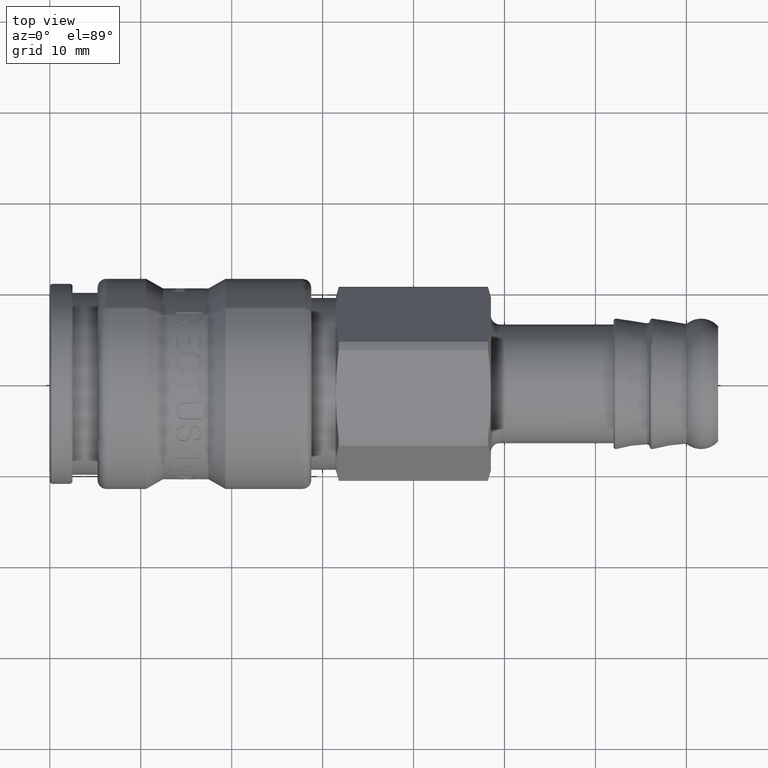
[diagram: clean part render]
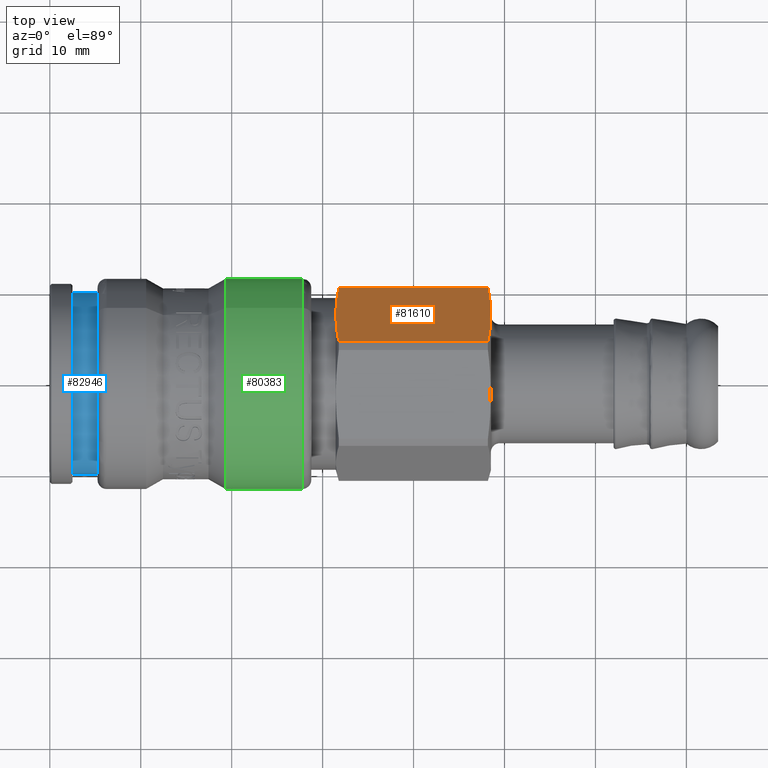
[diagram: same view with three faces highlighted in distinct colors, each labeled with its STEP entity id]
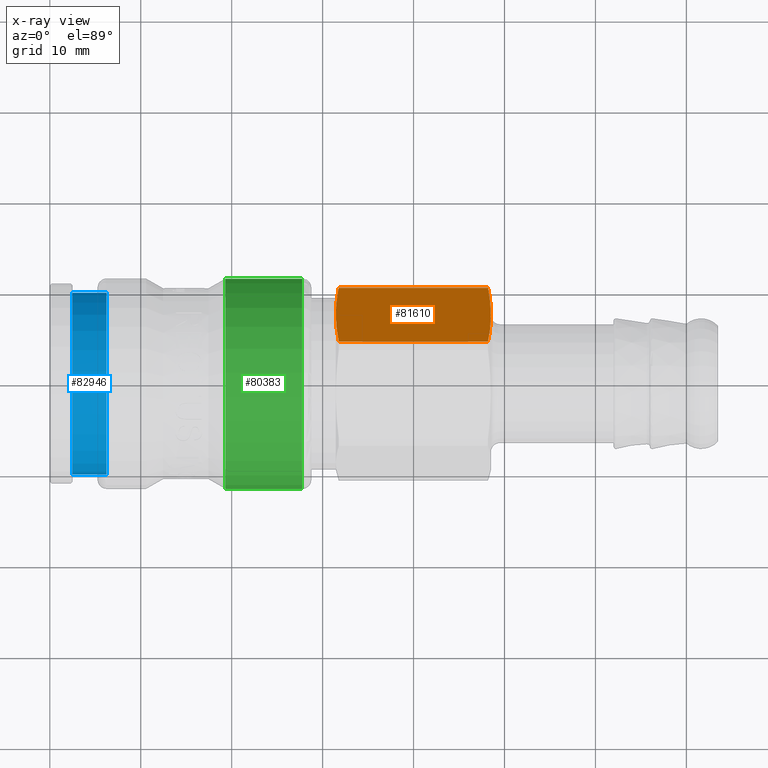
[diagram: x-ray of the same camera — body ghosted, the three highlighted faces saturated]
A machine part, top view with three faces highlighted in distinct colors.
The next image is the same camera in x-ray (body ghosted, the three faces saturated) — at least one of them is partly hidden behind the body in this view.
Their STEP definitions:

[orange] entity #81610 — the highlighted planar face has unit normal (-0, -0.788, -0.6157).
#81495=CARTESIAN_POINT('',(48.500000000000007,7.485774806349868,5.84920298404986));
#81496=VERTEX_POINT('',#81495);
#81544=CARTESIAN_POINT('',(29.50640680468193,7.485774806349877,5.84920298404986));
#81545=DIRECTION('',(-3.095927E-016,-0.787976295405248,-0.615705577268406));
#81546=DIRECTION('',(-2.419083E-016,-0.615705577268406,0.787976295405248));
#81547=AXIS2_PLACEMENT_3D('',#81544,#81545,#81546);
#81548=PLANE('',#81547);
#81549=CARTESIAN_POINT('',(48.178460969082657,10.517147926735607,1.969669892941755));
#81550=VERTEX_POINT('',#81549);
#81551=CARTESIAN_POINT('',(48.178460969082657,10.517147926735618,1.969669892941741));
#81552=CARTESIAN_POINT('',(48.500000000000007,8.911420580788725,4.024670094667314));
#81553=CARTESIAN_POINT('',(48.5,7.485774806349869,5.84920298404986));
#81561=(BOUNDED_CURVE()B_SPLINE_CURVE(2,(#81551,#81552,#81553),.UNSPECIFIED.,.F.,.U.)B_SPLINE_CURVE_WITH_KNOTS((3,3),(0.0,0.493628243022416),.UNSPECIFIED.)CURVE()GEOMETRIC_REPRESENTATION_ITEM()RATIONAL_B_SPLINE_CURVE((1.0,1.031095482841843,1.0))REPRESENTATION_ITEM(''));
#81562=EDGE_CURVE('',#81550,#81496,#81561,.T.);
#81563=ORIENTED_EDGE('',*,*,#81562,.F.);
#81564=CARTESIAN_POINT('',(31.778237760728125,10.517147926735618,1.969669892941751));
#81565=VERTEX_POINT('',#81564);
#81566=CARTESIAN_POINT('',(31.778237760728125,10.517147926735616,1.969669892941751));
#81567=DIRECTION('',(1.0,0.0,0.0));
#81568=VECTOR('',#81567,16.400223208354525);
#81569=LINE('',#81566,#81568);
#81570=EDGE_CURVE('',#81565,#81550,#81569,.T.);
#81571=ORIENTED_EDGE('',*,*,#81570,.F.);
#81572=CARTESIAN_POINT('',(31.778237760728125,4.454401685964132,9.728736075157974));
#81573=VERTEX_POINT('',#81572);
#81574=CARTESIAN_POINT('',(31.778237760728132,4.454401685964159,9.72873607515794));
#81575=CARTESIAN_POINT('',(31.171220150958938,7.485774806349874,5.84920298404986));
#81576=CARTESIAN_POINT('',(31.778237760728132,10.517147926735591,1.969669892941782));
#81584=(BOUNDED_CURVE()B_SPLINE_CURVE(2,(#81574,#81575,#81576),.UNSPECIFIED.,.F.,.U.)B_SPLINE_CURVE_WITH_KNOTS((3,3),(0.0,0.986780367628033),.UNSPECIFIED.)CURVE()GEOMETRIC_REPRESENTATION_ITEM()RATIONAL_B_SPLINE_CURVE((1.0,1.126315789473698,1.0))REPRESENTATION_ITEM(''));
#81585=EDGE_CURVE('',#81573,#81565,#81584,.T.);
#81586=ORIENTED_EDGE('',*,*,#81585,.F.);
#81587=CARTESIAN_POINT('',(48.17846096908265,4.45440168596413,9.728736075157967));
#81588=VERTEX_POINT('',#81587);
#81589=CARTESIAN_POINT('',(48.17846096908265,4.454401685964126,9.728736075157974));
#81590=DIRECTION('',(-1.0,0.0,0.0));
#81591=VECTOR('',#81590,16.400223208354525);
#81592=LINE('',#81589,#81591);
#81593=EDGE_CURVE('',#81588,#81573,#81592,.T.);
#81594=ORIENTED_EDGE('',*,*,#81593,.F.);
#81595=CARTESIAN_POINT('',(48.5,7.485774806349869,5.84920298404986));
#81596=CARTESIAN_POINT('',(48.5,6.06012903191102,7.673735873432399));
#81597=CARTESIAN_POINT('',(48.17846096908265,4.454401685964119,9.728736075157981));
#81605=(BOUNDED_CURVE()B_SPLINE_CURVE(2,(#81595,#81596,#81597),.UNSPECIFIED.,.F.,.U.)B_SPLINE_CURVE_WITH_KNOTS((3,3),(0.493628243022416,0.987256486044832),.UNSPECIFIED.)CURVE()GEOMETRIC_REPRESENTATION_ITEM()RATIONAL_B_SPLINE_CURVE((1.0,1.031095482841855,1.0))REPRESENTATION_ITEM(''));
#81606=EDGE_CURVE('',#81496,#81588,#81605,.T.);
#81607=ORIENTED_EDGE('',*,*,#81606,.F.);
#81608=EDGE_LOOP('',(#81563,#81571,#81586,#81594,#81607));
#81609=FACE_OUTER_BOUND('',#81608,.T.);
#81610=ADVANCED_FACE('',(#81609),#81548,.F.);

[blue] entity #82946 — the highlighted cylindrical surface (bore or boss wall) has radius 10 mm, axis along (1, 0, 0).
#82903=CARTESIAN_POINT('',(2.499999999999999,10.0,0.0));
#82904=VERTEX_POINT('',#82903);
#82905=CARTESIAN_POINT('',(2.499999999999999,0.0,0.0));
#82906=DIRECTION('',(1.0,0.0,0.0));
#82907=DIRECTION('',(0.0,1.0,0.0));
#82908=AXIS2_PLACEMENT_3D('',#82905,#82906,#82907);
#82909=CIRCLE('',#82908,10.0);
#82910=EDGE_CURVE('',#82904,#82904,#82909,.T.);
#82927=CARTESIAN_POINT('',(4.372649730810371,0.0,0.0));
#82928=DIRECTION('',(1.0,0.0,0.0));
#82929=DIRECTION('',(0.0,1.0,0.0));
#82930=AXIS2_PLACEMENT_3D('',#82927,#82928,#82929);
#82931=CYLINDRICAL_SURFACE('',#82930,10.0);
#82932=CARTESIAN_POINT('',(6.245299461620744,10.0,0.0));
#82933=VERTEX_POINT('',#82932);
#82934=CARTESIAN_POINT('',(6.245299461620744,0.0,0.0));
#82935=DIRECTION('',(1.0,0.0,0.0));
#82936=DIRECTION('',(0.0,1.0,0.0));
#82937=AXIS2_PLACEMENT_3D('',#82934,#82935,#82936);
#82938=CIRCLE('',#82937,10.0);
#82939=EDGE_CURVE('',#82933,#82933,#82938,.T.);
#82940=ORIENTED_EDGE('',*,*,#82939,.F.);
#82941=EDGE_LOOP('',(#82940));
#82942=FACE_OUTER_BOUND('',#82941,.T.);
#82943=ORIENTED_EDGE('',*,*,#82910,.T.);
#82944=EDGE_LOOP('',(#82943));
#82945=FACE_BOUND('',#82944,.T.);
#82946=ADVANCED_FACE('',(#82942,#82945),#82931,.T.);

[green] entity #80383 — the highlighted cylindrical surface (bore or boss wall) has radius 11.575 mm, axis along (1, 0, 0).
#80341=CARTESIAN_POINT('',(27.75,8.209837854916225,8.159607061371556));
#80342=VERTEX_POINT('',#80341);
#80343=CARTESIAN_POINT('',(27.75,0.0,0.0));
#80344=DIRECTION('',(1.0,0.0,0.0));
#80345=DIRECTION('',(0.0,-0.709273248804858,-0.70493365541007));
#80346=AXIS2_PLACEMENT_3D('',#80343,#80344,#80345);
#80347=CIRCLE('',#80346,11.574999999999999);
#80348=EDGE_CURVE('',#80342,#80342,#80347,.T.);
#80364=CARTESIAN_POINT('',(24.030977309068273,0.0,0.0));
#80365=DIRECTION('',(1.0,0.0,0.0));
#80366=DIRECTION('',(0.0,0.709273248804858,0.70493365541007));
#80367=AXIS2_PLACEMENT_3D('',#80364,#80365,#80366);
#80368=CYLINDRICAL_SURFACE('',#80367,11.574999999999999);
#80369=CARTESIAN_POINT('',(19.311954618136543,8.209837854916225,8.159607061371556));
#80370=VERTEX_POINT('',#80369);
#80371=CARTESIAN_POINT('',(19.311954618136543,0.0,0.0));
#80372=DIRECTION('',(1.0,0.0,0.0));
#80373=DIRECTION('',(0.0,0.709273248804858,0.70493365541007));
#80374=AXIS2_PLACEMENT_3D('',#80371,#80372,#80373);
#80375=CIRCLE('',#80374,11.574999999999999);
#80376=EDGE_CURVE('',#80370,#80370,#80375,.T.);
#80377=ORIENTED_EDGE('',*,*,#80376,.T.);
#80378=EDGE_LOOP('',(#80377));
#80379=FACE_OUTER_BOUND('',#80378,.T.);
#80380=ORIENTED_EDGE('',*,*,#80348,.F.);
#80381=EDGE_LOOP('',(#80380));
#80382=FACE_BOUND('',#80381,.T.);
#80383=ADVANCED_FACE('',(#80379,#80382),#80368,.T.);